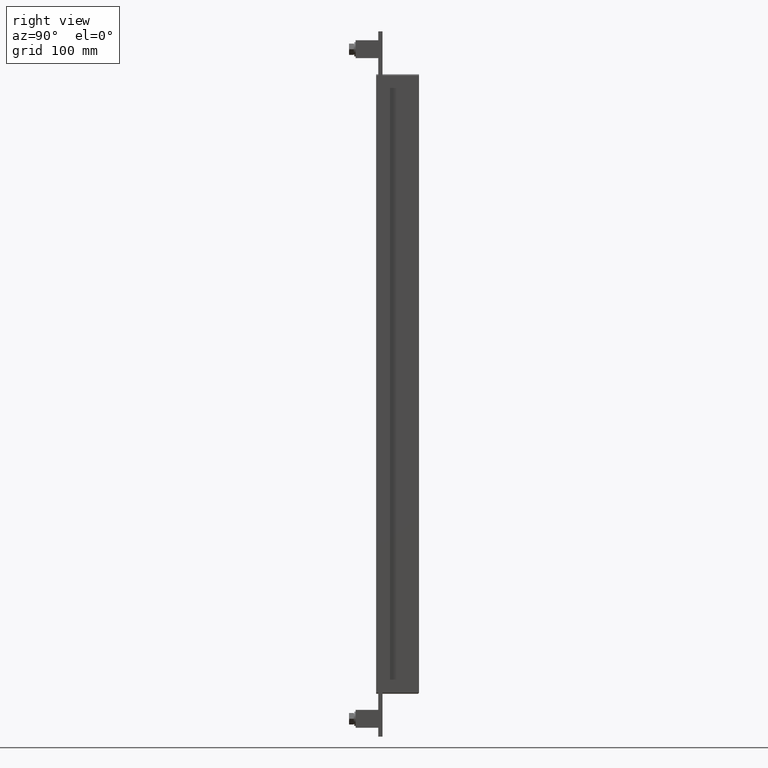
[diagram: clean part render]
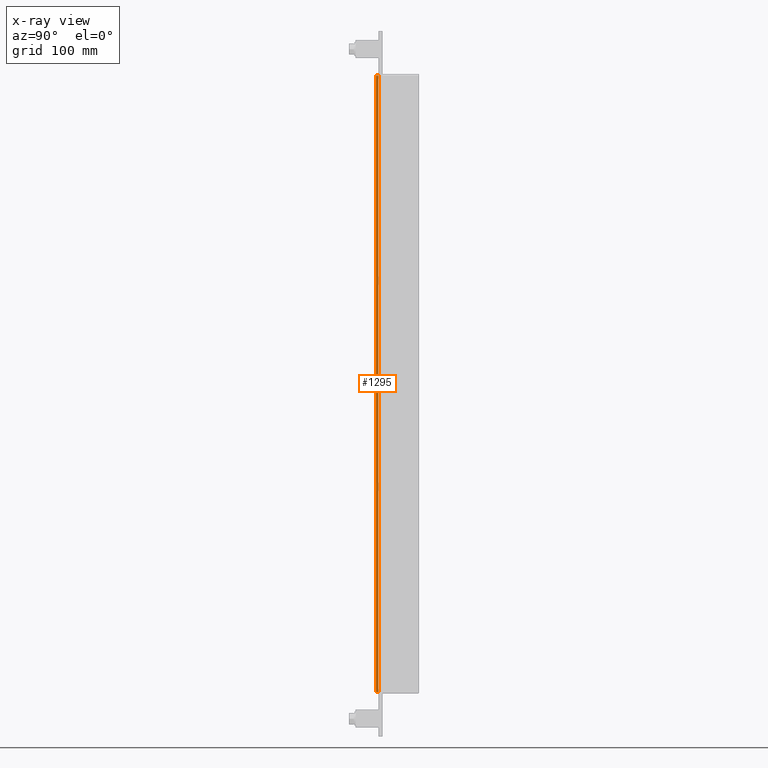
[diagram: x-ray — body ghosted, one internal face saturated and labeled with its STEP entity id]
A machine part, right view, then the same camera in x-ray: the body is ghosted and one INTERNAL B-rep face — a face not visible from any outside direction — is saturated and labeled: STEP entity #1295.
In plain terms, the highlighted planar face has unit normal (1, 0, 0).
Its self-contained STEP definition (entity closure, byte-faithful):
#1009=CARTESIAN_POINT('',(66.25,0.0,431.0));
#1010=VERTEX_POINT('',#1009);
#1018=CARTESIAN_POINT('',(66.25,0.0,-431.0));
#1019=VERTEX_POINT('',#1018);
#1020=CARTESIAN_POINT('',(66.25,0.0,-431.0));
#1021=DIRECTION('',(0.0,0.0,1.0));
#1022=VECTOR('',#1021,862.0);
#1023=LINE('',#1020,#1022);
#1024=EDGE_CURVE('',#1019,#1010,#1023,.T.);
#1228=CARTESIAN_POINT('',(66.25,-3.0,-431.0));
#1229=VERTEX_POINT('',#1228);
#1230=CARTESIAN_POINT('',(66.25,0.0,-431.0));
#1231=DIRECTION('',(0.0,-1.0,0.0));
#1232=VECTOR('',#1231,3.0);
#1233=LINE('',#1230,#1232);
#1234=EDGE_CURVE('',#1019,#1229,#1233,.T.);
#1272=CARTESIAN_POINT('',(66.25,0.0,433.00000000000006));
#1273=DIRECTION('',(1.0,0.0,0.0));
#1274=DIRECTION('',(0.0,0.0,-1.0));
#1275=AXIS2_PLACEMENT_3D('',#1272,#1273,#1274);
#1276=PLANE('',#1275);
#1277=ORIENTED_EDGE('',*,*,#1024,.T.);
#1278=CARTESIAN_POINT('',(66.25,-3.0,431.0));
#1279=VERTEX_POINT('',#1278);
#1280=CARTESIAN_POINT('',(66.25,-3.0,431.0));
#1281=DIRECTION('',(0.0,1.0,0.0));
#1282=VECTOR('',#1281,3.0);
#1283=LINE('',#1280,#1282);
#1284=EDGE_CURVE('',#1279,#1010,#1283,.T.);
#1285=ORIENTED_EDGE('',*,*,#1284,.F.);
#1286=CARTESIAN_POINT('',(66.25,-3.0,-430.99999999999994));
#1287=DIRECTION('',(0.0,0.0,1.0));
#1288=VECTOR('',#1287,862.0);
#1289=LINE('',#1286,#1288);
#1290=EDGE_CURVE('',#1229,#1279,#1289,.T.);
#1291=ORIENTED_EDGE('',*,*,#1290,.F.);
#1292=ORIENTED_EDGE('',*,*,#1234,.F.);
#1293=EDGE_LOOP('',(#1277,#1285,#1291,#1292));
#1294=FACE_OUTER_BOUND('',#1293,.T.);
#1295=ADVANCED_FACE('',(#1294),#1276,.T.);